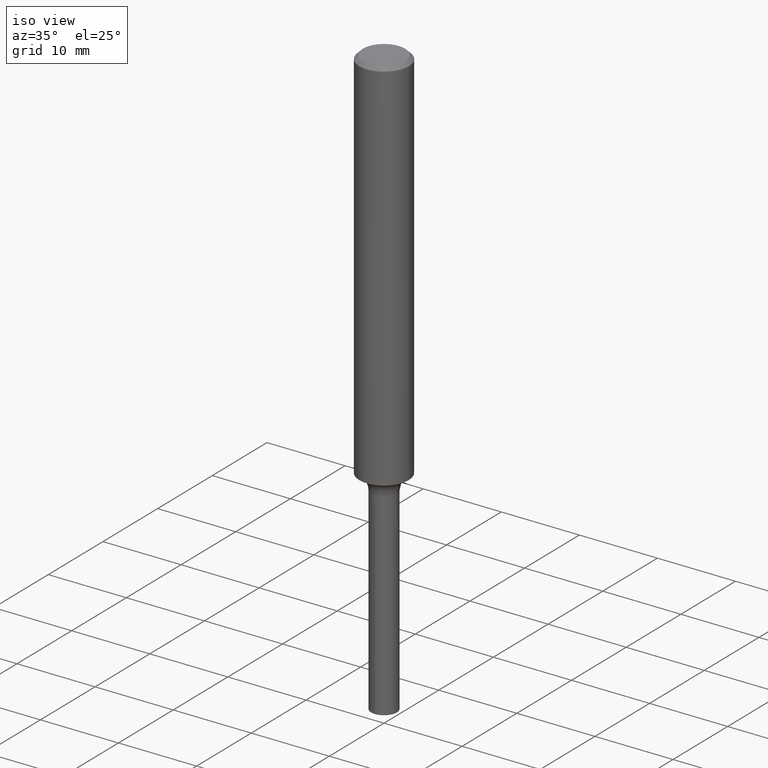
[diagram: clean part render]
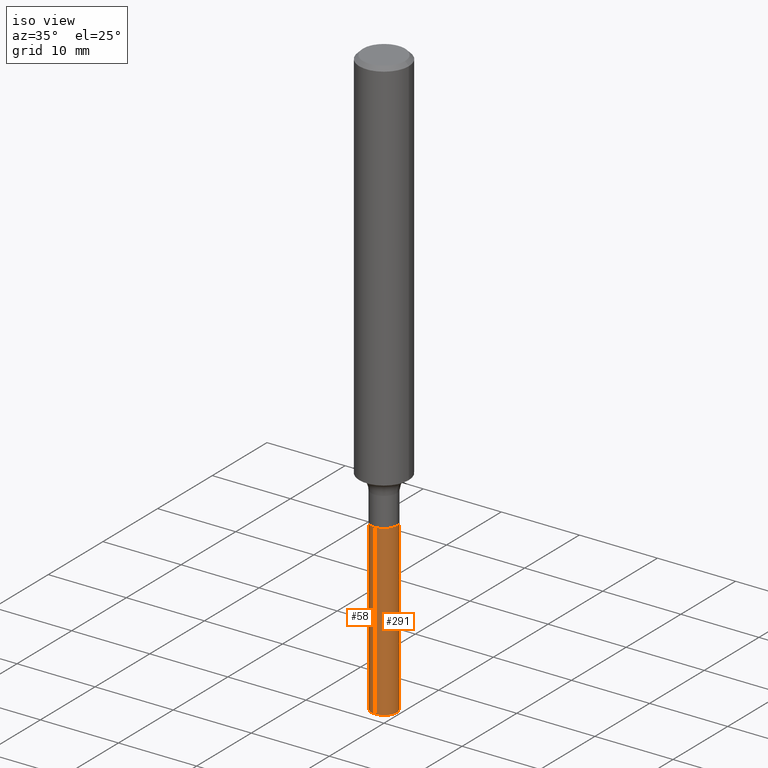
[diagram: same view with one multi-face feature highlighted, each face labeled with its STEP entity id]
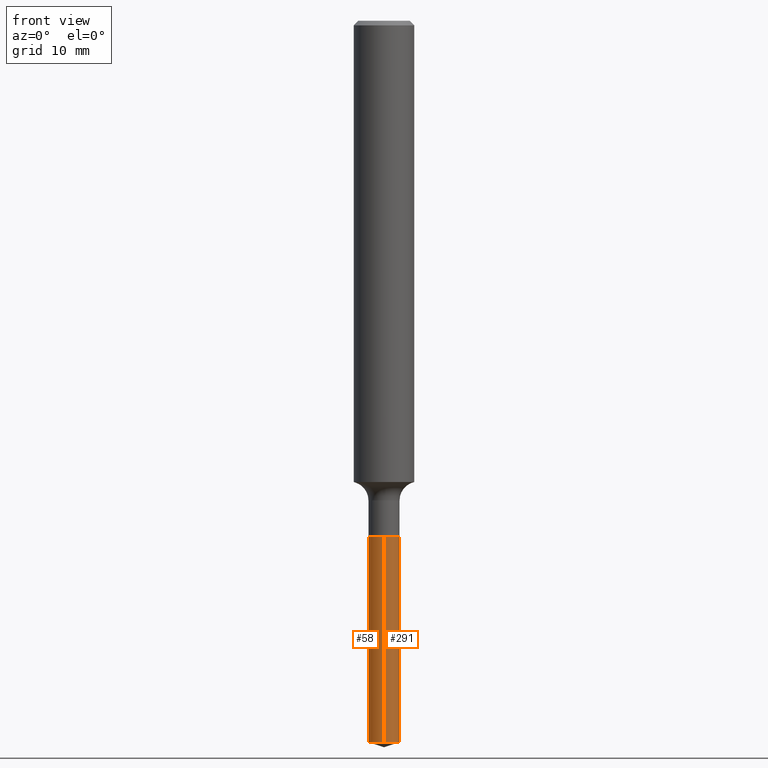
[diagram: same view with one multi-face feature highlighted, each face labeled with its STEP entity id]
A machine part, iso view. The highlighted faces form ONE feature: a constant-radius fillet chain: 2 tangent blend faces with common blend radius 1.632 mm. The faces share edges in the B-rep.
A second angle (front view) of the same feature is appended — it is thin or edge-on in the first view.
Their STEP definitions:
[1] entity #58 (Cylinder):
#1 = CARTESIAN_POINT ( 'NONE',  ( 5.205180353965063757E-29, -7.431618029727636515E-15, -2.128500000000000281 ) ) ;
#7 = DIRECTION ( 'NONE',  ( -2.432262427219051972E-29, 3.510393625182989669E-15, 1.000000000000000000 ) ) ;
#12 = CARTESIAN_POINT ( 'NONE',  ( -4.486553520412906226E-16, -0.06425000000000745393, -2.128499999999999837 ) ) ;
#26 = CARTESIAN_POINT ( 'NONE',  ( 4.565237077259373501E-16, 0.06424999999999256306, -2.128500000000000725 ) ) ;
#35 = CARTESIAN_POINT ( 'NONE',  ( 7.275624415494651683E-29, -1.041981270541542944E-14, -2.979742052814525977 ) ) ;
#40 = DIRECTION ( 'NONE',  ( -2.432262427219051972E-29, 3.510393625182989669E-15, 1.000000000000000000 ) ) ;
#58 = ADVANCED_FACE ( 'NONE', ( #117 ), #238, .T. ) ;
#70 = CARTESIAN_POINT ( 'NONE',  ( -4.486553520412698164E-16, -0.06425000000001042377, -2.979742052814525977 ) ) ;
#117 = FACE_OUTER_BOUND ( 'NONE', #393, .T. ) ;
#137 = DIRECTION ( 'NONE',  ( -2.432262427219051972E-29, 3.510393625182989669E-15, 1.000000000000000000 ) ) ;
#146 = ORIENTED_EDGE ( 'NONE', *, *, #364, .F. ) ;
#148 = VERTEX_POINT ( 'NONE', #289 ) ;
#172 = AXIS2_PLACEMENT_3D ( 'NONE', #35, #40, #242 ) ;
#185 = VERTEX_POINT ( 'NONE', #331 ) ;
#221 = ORIENTED_EDGE ( 'NONE', *, *, #458, .F. ) ;
#232 = AXIS2_PLACEMENT_3D ( 'NONE', #433, #234, #428 ) ;
#234 = DIRECTION ( 'NONE',  ( -2.432262427219051972E-29, 3.510393625182989669E-15, 1.000000000000000000 ) ) ;
#238 = CYLINDRICAL_SURFACE ( 'NONE', #232, 0.06425000000000001543 ) ;
#242 = DIRECTION ( 'NONE',  ( -6.982962677686267499E-15, -1.000000000000000000, 0.000000000000000000 ) ) ;
#255 = CIRCLE ( 'NONE', #172, 0.06425000000000001543 ) ;
#260 = ORIENTED_EDGE ( 'NONE', *, *, #484, .T. ) ;
#268 = VECTOR ( 'NONE', #423, 39.37007874015748143 ) ;
#289 = CARTESIAN_POINT ( 'NONE',  ( -4.486553520412906226E-16, -0.06425000000000744005, -2.128499999999999837 ) ) ;
#296 = VERTEX_POINT ( 'NONE', #70 ) ;
#329 = CIRCLE ( 'NONE', #348, 0.06425000000000000155 ) ;
#331 = CARTESIAN_POINT ( 'NONE',  ( 4.565237077259370543E-16, 0.06424999999998956546, -2.979742052814525977 ) ) ;
#344 = VERTEX_POINT ( 'NONE', #26 ) ;
#348 = AXIS2_PLACEMENT_3D ( 'NONE', #1, #7, #430 ) ;
#353 = LINE ( 'NONE', #12, #268 ) ;
#356 = ORIENTED_EDGE ( 'NONE', *, *, #427, .T. ) ;
#364 = EDGE_CURVE ( 'NONE', #185, #344, #483, .T. ) ;
#393 = EDGE_LOOP ( 'NONE', ( #146, #260, #356, #221 ) ) ;
#401 = VECTOR ( 'NONE', #137, 39.37007874015748143 ) ;
#423 = DIRECTION ( 'NONE',  ( -2.432262427219051972E-29, 3.510393625182989669E-15, 1.000000000000000000 ) ) ;
#427 = EDGE_CURVE ( 'NONE', #296, #148, #353, .T. ) ;
#428 = DIRECTION ( 'NONE',  ( -6.982962677686265922E-15, -1.000000000000000000, 4.251903492084454984E-15 ) ) ;
#430 = DIRECTION ( 'NONE',  ( -6.982962677686265922E-15, -1.000000000000000000, 4.251903492084456561E-15 ) ) ;
#433 = CARTESIAN_POINT ( 'NONE',  ( 5.205180353965063757E-29, -7.431618029727636515E-15, -2.128500000000000281 ) ) ;
#458 = EDGE_CURVE ( 'NONE', #344, #148, #329, .T. ) ;
#483 = LINE ( 'NONE', #486, #401 ) ;
#484 = EDGE_CURVE ( 'NONE', #185, #296, #255, .T. ) ;
#486 = CARTESIAN_POINT ( 'NONE',  ( 4.565237077259164453E-16, 0.06424999999999257694, -2.128500000000000725 ) ) ;
[2] entity #291 (Cylinder):
#12 = CARTESIAN_POINT ( 'NONE',  ( -4.486553520412906226E-16, -0.06425000000000745393, -2.128499999999999837 ) ) ;
#26 = CARTESIAN_POINT ( 'NONE',  ( 4.565237077259373501E-16, 0.06424999999999256306, -2.128500000000000725 ) ) ;
#31 = ORIENTED_EDGE ( 'NONE', *, *, #273, .T. ) ;
#49 = DIRECTION ( 'NONE',  ( -2.432262427219051972E-29, 3.510393625182989669E-15, 1.000000000000000000 ) ) ;
#67 = CYLINDRICAL_SURFACE ( 'NONE', #128, 0.06425000000000001543 ) ;
#70 = CARTESIAN_POINT ( 'NONE',  ( -4.486553520412698164E-16, -0.06425000000001042377, -2.979742052814525977 ) ) ;
#71 = ORIENTED_EDGE ( 'NONE', *, *, #427, .F. ) ;
#107 = AXIS2_PLACEMENT_3D ( 'NONE', #363, #49, #435 ) ;
#128 = AXIS2_PLACEMENT_3D ( 'NONE', #174, #222, #414 ) ;
#137 = DIRECTION ( 'NONE',  ( -2.432262427219051972E-29, 3.510393625182989669E-15, 1.000000000000000000 ) ) ;
#148 = VERTEX_POINT ( 'NONE', #289 ) ;
#149 = EDGE_CURVE ( 'NONE', #148, #344, #218, .T. ) ;
#174 = CARTESIAN_POINT ( 'NONE',  ( 5.205180353965063757E-29, -7.431618029727636515E-15, -2.128500000000000281 ) ) ;
#184 = CARTESIAN_POINT ( 'NONE',  ( 7.275624415494651683E-29, -1.041981270541542944E-14, -2.979742052814525977 ) ) ;
#185 = VERTEX_POINT ( 'NONE', #331 ) ;
#218 = CIRCLE ( 'NONE', #107, 0.06425000000000000155 ) ;
#222 = DIRECTION ( 'NONE',  ( -2.432262427219051972E-29, 3.510393625182989669E-15, 1.000000000000000000 ) ) ;
#225 = ORIENTED_EDGE ( 'NONE', *, *, #149, .F. ) ;
#256 = EDGE_LOOP ( 'NONE', ( #31, #417, #225, #71 ) ) ;
#259 = CIRCLE ( 'NONE', #309, 0.06425000000000001543 ) ;
#262 = DIRECTION ( 'NONE',  ( -2.432262427219051972E-29, 3.510393625182989669E-15, 1.000000000000000000 ) ) ;
#268 = VECTOR ( 'NONE', #423, 39.37007874015748143 ) ;
#273 = EDGE_CURVE ( 'NONE', #296, #185, #259, .T. ) ;
#289 = CARTESIAN_POINT ( 'NONE',  ( -4.486553520412906226E-16, -0.06425000000000744005, -2.128499999999999837 ) ) ;
#291 = ADVANCED_FACE ( 'NONE', ( #299 ), #67, .T. ) ;
#296 = VERTEX_POINT ( 'NONE', #70 ) ;
#299 = FACE_OUTER_BOUND ( 'NONE', #256, .T. ) ;
#309 = AXIS2_PLACEMENT_3D ( 'NONE', #184, #262, #409 ) ;
#331 = CARTESIAN_POINT ( 'NONE',  ( 4.565237077259370543E-16, 0.06424999999998956546, -2.979742052814525977 ) ) ;
#344 = VERTEX_POINT ( 'NONE', #26 ) ;
#353 = LINE ( 'NONE', #12, #268 ) ;
#363 = CARTESIAN_POINT ( 'NONE',  ( 5.205180353965063757E-29, -7.431618029727636515E-15, -2.128500000000000281 ) ) ;
#364 = EDGE_CURVE ( 'NONE', #185, #344, #483, .T. ) ;
#401 = VECTOR ( 'NONE', #137, 39.37007874015748143 ) ;
#409 = DIRECTION ( 'NONE',  ( -6.982962677686267499E-15, -1.000000000000000000, 0.000000000000000000 ) ) ;
#414 = DIRECTION ( 'NONE',  ( -6.982962677686265922E-15, -1.000000000000000000, 4.251903492084454984E-15 ) ) ;
#417 = ORIENTED_EDGE ( 'NONE', *, *, #364, .T. ) ;
#423 = DIRECTION ( 'NONE',  ( -2.432262427219051972E-29, 3.510393625182989669E-15, 1.000000000000000000 ) ) ;
#427 = EDGE_CURVE ( 'NONE', #296, #148, #353, .T. ) ;
#435 = DIRECTION ( 'NONE',  ( -6.982962677686265922E-15, -1.000000000000000000, 4.251903492084456561E-15 ) ) ;
#483 = LINE ( 'NONE', #486, #401 ) ;
#486 = CARTESIAN_POINT ( 'NONE',  ( 4.565237077259164453E-16, 0.06424999999999257694, -2.128500000000000725 ) ) ;